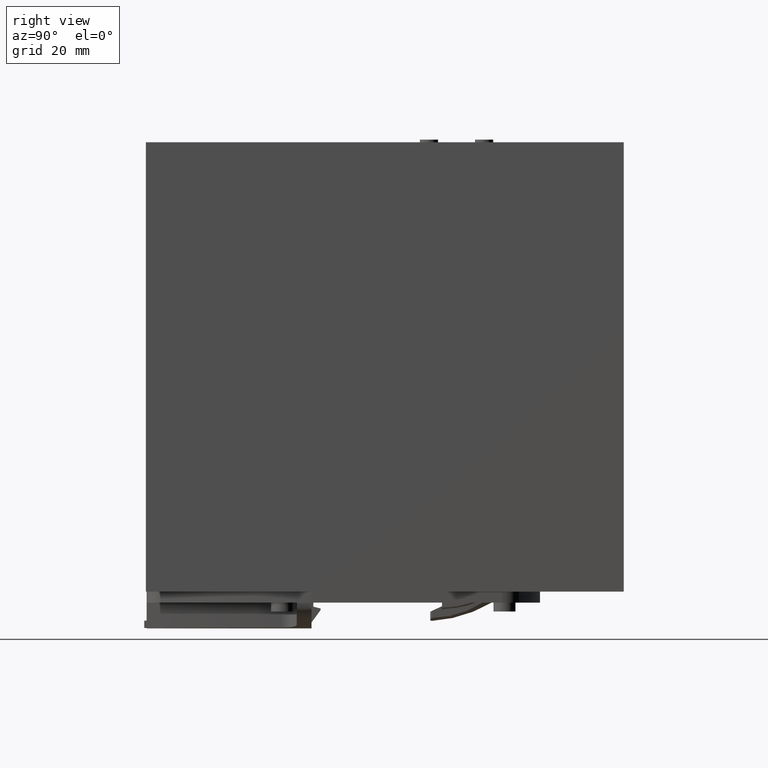
[diagram: clean part render]
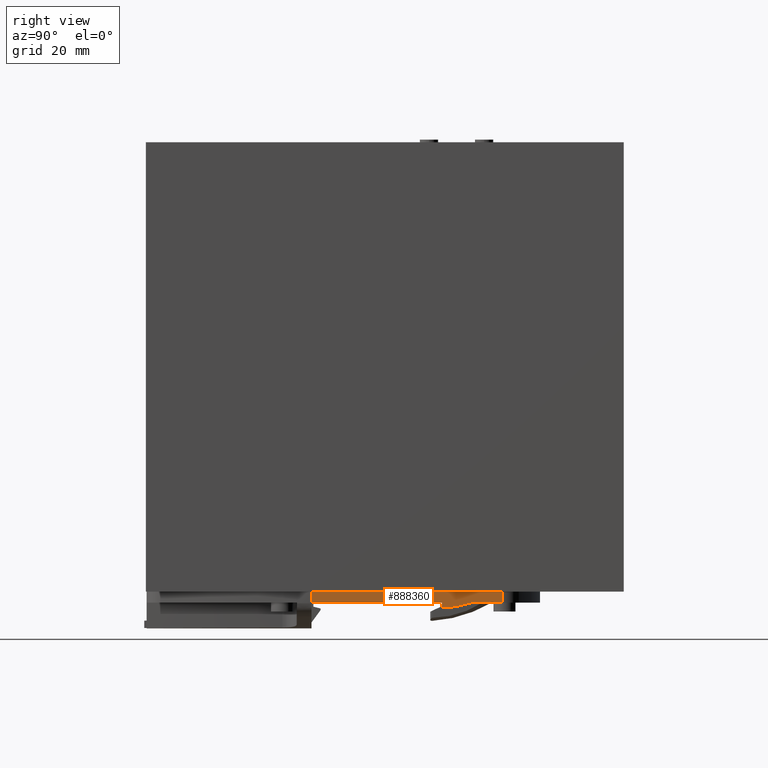
[diagram: same view with one face highlighted and labeled with its STEP entity id]
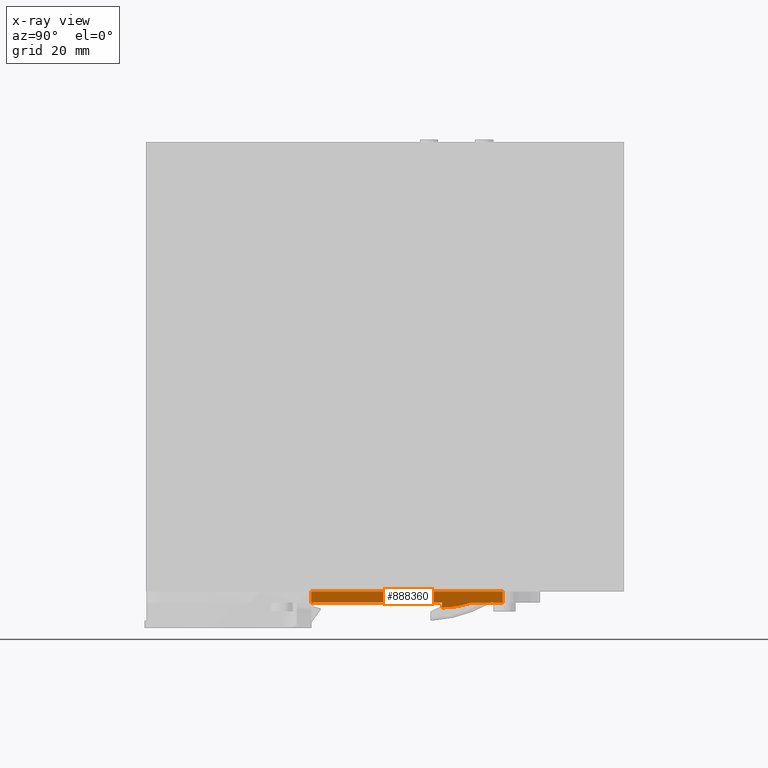
[diagram: x-ray of the same camera — body ghosted, the highlighted face saturated]
A machine part, right view. The second image highlights one B-rep face of the part: STEP entity #888360.
The next image is the same camera in x-ray: the body ghosted, the highlighted face saturated — about 0% of this face is hidden behind the body in this view.
In plain terms, the highlighted planar face has unit normal (-1, 0, 0).
Its self-contained STEP definition (entity closure, byte-faithful):
#11610=CARTESIAN_POINT('',(61.,0.0999999999916668,32.1473524065366));
#11620=VERTEX_POINT('',#11610);
#11650=CARTESIAN_POINT('',(61.,0.0999999999916668,0.));
#11660=DIRECTION('',(0.,0.,-1.));
#11670=VECTOR('',#11660,1.);
#11680=LINE('',#11650,#11670);
#11690=CARTESIAN_POINT('',(61.,0.0999999999916543,84.0968498908014));
#11700=VERTEX_POINT('',#11690);
#11710=EDGE_CURVE('',#11700,#11620,#11680,.T.);
#854170=CARTESIAN_POINT('',(61.,-2.90000000000834,84.0968498908014));
#854180=VERTEX_POINT('',#854170);
#854210=CARTESIAN_POINT('',(61.,-2.90000000000834,0.));
#854220=DIRECTION('',(0.,0.,1.));
#854230=VECTOR('',#854220,1.);
#854240=LINE('',#854210,#854230);
#854250=CARTESIAN_POINT('',(61.,-2.90000000000834,48.5992150856014));
#854260=VERTEX_POINT('',#854250);
#854270=EDGE_CURVE('',#854260,#854180,#854240,.T.);
#856380=CARTESIAN_POINT('',(71.3776186215084,-1.50441604344967,
59.3890615417308));
#856390=CARTESIAN_POINT('',(67.8905807945972,-2.46315462781471,
59.3760409726225));
#856400=CARTESIAN_POINT('',(64.403542967686,-3.42189321217974,
59.3630204035142));
#856410=CARTESIAN_POINT('',(59.940036942065,-4.64910543663078,
59.3463537105913));
#856420=CARTESIAN_POINT('',(58.960256886242,-4.85962099943991,
59.3427317559507));
#856430=CARTESIAN_POINT('',(54.4409182175586,-5.635865212246,
59.3269920216905));
#856440=CARTESIAN_POINT('',(50.8633678936988,-6.25034731648889,
59.3145323023537));
#856450=CARTESIAN_POINT('',(47.2858175698389,-6.86482942073177,
59.3020725830168));
#856460=CARTESIAN_POINT('',(71.4649916167112,-1.82158789204662,
55.3070226782829));
#856470=CARTESIAN_POINT('',(67.933910524371,-2.66380690772467,
55.4173793020009));
#856480=CARTESIAN_POINT('',(64.4028294320308,-3.50602592340273,
55.527735925719));
#856490=CARTESIAN_POINT('',(59.9402583424642,-4.57042012227885,
55.6672043394053));
#856500=CARTESIAN_POINT('',(58.9611211893232,-4.75735439246061,
55.6966888895867));
#856510=CARTESIAN_POINT('',(54.4445600352414,-5.4540363797365,
55.8262367667353));
#856520=CARTESIAN_POINT('',(50.8531594499154,-6.00801185167878,
55.9292483957041));
#856530=CARTESIAN_POINT('',(47.2617588645895,-6.56198732362106,
56.032260024673));
#856540=CARTESIAN_POINT('',(71.5286159205105,-2.15008544180546,
51.2202886757841));
#856550=CARTESIAN_POINT('',(67.9653659084431,-2.87012203821559,
51.456370061854));
#856560=CARTESIAN_POINT('',(64.4021158963756,-3.59015863462571,
51.6924514479238));
#856570=CARTESIAN_POINT('',(59.9404797428634,-4.49173480792692,
51.9880549682194));
#856580=CARTESIAN_POINT('',(58.9619854924043,-4.6550877854813,
52.0506460232228));
#856590=CARTESIAN_POINT('',(54.4482018529241,-5.27220754722704,
52.3254815117802));
#856600=CARTESIAN_POINT('',(50.8499081675462,-5.76416248330085,
52.5445746012991));
#856610=CARTESIAN_POINT('',(47.2516144821684,-6.25611741937468,
52.763667690818));
#856620=CARTESIAN_POINT('',(71.6483174526818,-2.76885470265374,
46.1844097025758));
#856630=CARTESIAN_POINT('',(68.0245824565934,-3.25896317020212,
45.9625142285715));
#856640=CARTESIAN_POINT('',(64.400847460505,-3.74907163775051,
45.7406187545671));
#856650=CARTESIAN_POINT('',(59.9408721296792,-4.35228122041981,
45.4675170125386));
#856660=CARTESIAN_POINT('',(58.9635597476711,-4.46881777421632,
45.409686028064));
#856670=CARTESIAN_POINT('',(54.455157280269,-4.91477929632723,
45.1557333852177));
#856680=CARTESIAN_POINT('',(50.8298122310565,-5.27339066876216,
44.9515222565232));
#856690=CARTESIAN_POINT('',(47.204467181844,-5.63200204119708,
44.7473111278287));
#856700=CARTESIAN_POINT('',(71.6049814775971,-2.62228922657929,
44.1862294668129));
#856710=CARTESIAN_POINT('',(67.9952071859746,-2.99199532571181,
43.6766161009097));
#856720=CARTESIAN_POINT('',(64.3854328943521,-3.36170142484436,
43.1670027350064));
#856730=CARTESIAN_POINT('',(59.9456771456137,-3.81641261905298,
42.5402159366867));
#856740=CARTESIAN_POINT('',(58.971404518455,-3.90418316006749,
42.4135243350508));
#856750=CARTESIAN_POINT('',(54.4708672381153,-4.23934325729022,
41.8824170975357));
#856760=CARTESIAN_POINT('',(50.8596925148013,-4.50827151984262,
41.4562633047737));
#856770=CARTESIAN_POINT('',(47.2485177914873,-4.77719978239505,
41.0301095120117));
#856780=CARTESIAN_POINT('',(71.2943671864489,-1.34931680143503,
39.9382223000965));
#856790=CARTESIAN_POINT('',(67.8245274244743,-1.43722363529471,
38.8826468176419));
#856800=CARTESIAN_POINT('',(64.3546876624996,-1.5251304691544,
37.8270713351873));
#856810=CARTESIAN_POINT('',(59.9552615333447,-1.63658795663027,
36.4887022238243));
#856820=CARTESIAN_POINT('',(58.9868939039784,-1.65819126235366,
36.2221875959119));
#856830=CARTESIAN_POINT('',(54.5012358905247,-1.74300799729869,
35.1192682247638));
#856840=CARTESIAN_POINT('',(50.9899657319504,-1.80940059108694,
34.2559282502025));
#856850=CARTESIAN_POINT('',(47.4786955733761,-1.87579318487518,
33.3925882756412));
#856860=CARTESIAN_POINT('',(71.4222429006199,-0.0255577472793451,
35.9540887202444));
#856870=CARTESIAN_POINT('',(67.879676351948,-0.136535036826837,
35.0450510826265));
#856880=CARTESIAN_POINT('',(64.3371098032761,-0.247512326374322,
34.1360134450086));
#856890=CARTESIAN_POINT('',(59.9607663109547,-0.38460918319659,
33.0130250988458));
#856900=CARTESIAN_POINT('',(58.9954847551747,-0.412500647180176,
32.7882971712962));
#856910=CARTESIAN_POINT('',(54.516650024788,-0.534077769304675,
31.8503565946234));
#856920=CARTESIAN_POINT('',(50.9619732528168,-0.630568798341089,
31.1059496713744));
#856930=CARTESIAN_POINT('',(47.4072964808457,-0.727059827377504,
30.3615427481253));
#856940=CARTESIAN_POINT('',(71.5325160442117,1.29974594385051,
31.9487843553515));
#856950=CARTESIAN_POINT('',(67.9260239941322,1.16492588012812,
31.1968699550907));
#856960=CARTESIAN_POINT('',(64.3195319440527,1.03010581640573,
30.4449555548298));
#856970=CARTESIAN_POINT('',(59.9662710885648,0.867369590237102,
29.5373479738673));
#856980=CARTESIAN_POINT('',(59.004075606371,0.833189967993304,
29.3544067466805));
#856990=CARTESIAN_POINT('',(54.5320641590512,0.674852458689349,
28.581444964483));
#857000=CARTESIAN_POINT('',(50.9401788551655,0.547676985320733,
27.9606079879577));
#857010=CARTESIAN_POINT('',(47.3482935512799,0.420501511952123,
27.3397710114324));
#857020=B_SPLINE_SURFACE_WITH_KNOTS('',3,3,((#856380,#856460,#856540,
#856620,#856700,#856780,#856860,#856940),(#856390,#856470,#856550,
#856630,#856710,#856790,#856870,#856950),(#856400,#856480,#856560,
#856640,#856720,#856800,#856880,#856960),(#856410,#856490,#856570,
#856650,#856730,#856810,#856890,#856970),(#856420,#856500,#856580,
#856660,#856740,#856820,#856900,#856980),(#856430,#856510,#856590,
#856670,#856750,#856830,#856910,#856990),(#856440,#856520,#856600,
#856680,#856760,#856840,#856920,#857000),(#856450,#856530,#856610,
#856690,#856770,#856850,#856930,#857010)),.UNSPECIFIED.,.F.,.F.,.F.,(4,2
,2,4),(4,2,2,4),(-1.04425037197643,0.00840241999769925,0.303174667007196
,1.36540567626834),(-0.672680963199468,0.00647129604993427,
0.596721513342289,1.28419559916893),.UNSPECIFIED.);
#857180=CARTESIAN_POINT('',(61.,-2.90000000000834,40.4366382723885));
#857190=VERTEX_POINT('',#857180);
#857220=CARTESIAN_POINT('',(61.,-2.90000000000834,0.));
#857230=DIRECTION('',(0.,0.,1.));
#857240=VECTOR('',#857230,1.);
#857250=LINE('',#857220,#857240);
#857260=CARTESIAN_POINT('',(61.,-2.90000000000834,32.1473524065366));
#857270=VERTEX_POINT('',#857260);
#857280=EDGE_CURVE('',#857270,#857190,#857250,.T.);
#887320=CARTESIAN_POINT('',(61.,61.2249999999917,48.5992150856014));
#887330=DIRECTION('',(0.,-1.,0.));
#887340=VECTOR('',#887330,1.);
#887350=LINE('',#887320,#887340);
#887360=CARTESIAN_POINT('',(61.,-4.24198216644077,48.5992150856014));
#887370=VERTEX_POINT('',#887360);
#887380=EDGE_CURVE('',#854260,#887370,#887350,.T.);
#887880=CARTESIAN_POINT('',(61.,-2.90000000000834,21.8444846960001));
#887890=DIRECTION('',(-1.,0.,0.));
#887900=DIRECTION('',(0.,0.,1.));
#887910=AXIS2_PLACEMENT_3D('',#887880,#887890,#887900);
#887920=PLANE('',#887910);
#887930=ORIENTED_EDGE('',*,*,#857280,.F.);
#887940=CARTESIAN_POINT('',(61.,-2.90000000000834,21.8444846960001));
#887950=DIRECTION('',(-1.,0.,0.));
#887960=DIRECTION('',(0.,0.,1.));
#887970=AXIS2_PLACEMENT_3D('',#887940,#887950,#887960);
#887980=PLANE('',#887970);
#887990=CARTESIAN_POINT('',(61.,-2.90000000000833,40.4366382723885));
#888000=CARTESIAN_POINT('',(61.,-3.11995909055093,41.0926285194318));
#888010=CARTESIAN_POINT('',(61.,-3.31359719072416,41.7582662965021));
#888020=CARTESIAN_POINT('',(61.,-3.47979123923969,42.430414259942));
#888030=CARTESIAN_POINT('',(61.,-3.64604335299441,43.1027970599036));
#888040=CARTESIAN_POINT('',(61.,-3.78463065206904,43.7805063631685));
#888050=CARTESIAN_POINT('',(61.,-3.89602768334604,44.4633891268116));
#888060=CARTESIAN_POINT('',(61.,-4.00744746344541,45.1464113446081));
#888070=CARTESIAN_POINT('',(61.,-4.09160128831743,45.834689456726));
#888080=CARTESIAN_POINT('',(61.,-4.14893551379175,46.5250924250058));
#888090=CARTESIAN_POINT('',(61.,-4.17760205810329,46.8702870643207));
#888100=CARTESIAN_POINT('',(61.,-4.19957718228291,47.215997751556));
#888110=CARTESIAN_POINT('',(61.,-4.2150011044441,47.5618187283178));
#888120=CARTESIAN_POINT('',(61.,-4.23043252045366,47.9078077252459));
#888130=CARTESIAN_POINT('',(61.,-4.23826713282839,48.2534250875068));
#888140=CARTESIAN_POINT('',(61.,-4.24198216644075,48.5992150856014));
#888150=B_SPLINE_CURVE_WITH_KNOTS('',3,(#887990,#888000,#888010,#888020,
#888030,#888040,#888050,#888060,#888070,#888080,#888090,#888100,#888110,
#888120,#888130,#888140),.UNSPECIFIED.,.F.,.F.,(4,3,3,3,3,4),(0.,
2.07693672640201,4.15264792437999,6.23034350342768,7.26923613589252,
8.30703278400105),.UNSPECIFIED.);
#888160=SURFACE_CURVE('',#888150,(#887980,#857020),.CURVE_3D.);
#888170=EDGE_CURVE('',#857190,#887370,#888160,.T.);
#888180=ORIENTED_EDGE('',*,*,#888170,.F.);
#888190=ORIENTED_EDGE('',*,*,#887380,.T.);
#888200=ORIENTED_EDGE('',*,*,#854270,.F.);
#888210=CARTESIAN_POINT('',(61.,1.10000239999169,84.0968498908014));
#888220=DIRECTION('',(0.,-1.,0.));
#888230=VECTOR('',#888220,1.);
#888240=LINE('',#888210,#888230);
#888250=EDGE_CURVE('',#11700,#854180,#888240,.T.);
#888260=ORIENTED_EDGE('',*,*,#888250,.T.);
#888270=ORIENTED_EDGE('',*,*,#11710,.F.);
#888280=CARTESIAN_POINT('',(61.,1.10000239999169,32.1473524065366));
#888290=DIRECTION('',(0.,-1.,0.));
#888300=VECTOR('',#888290,1.);
#888310=LINE('',#888280,#888300);
#888320=EDGE_CURVE('',#11620,#857270,#888310,.T.);
#888330=ORIENTED_EDGE('',*,*,#888320,.F.);
#888340=EDGE_LOOP('',(#888330,#888270,#888260,#888200,#888190,#888180,
#887930));
#888350=FACE_OUTER_BOUND('',#888340,.T.);
#888360=ADVANCED_FACE('',(#888350),#887920,.F.);